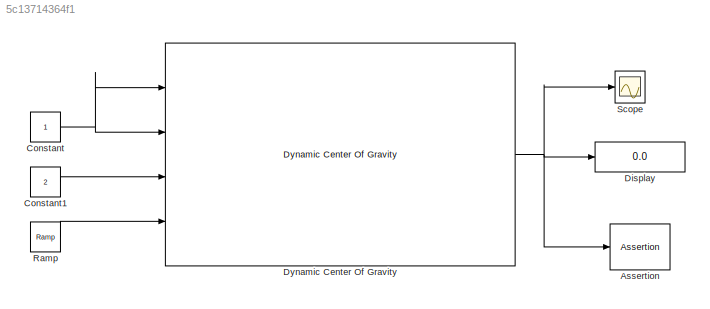
MODEL slx_5c13714364f1
KIND model
BLOCK [Assertion] Assertion
BLOCK [Constant] Constant
BLOCK [Constant] Constant1
  Value = 2
BLOCK [Display] Display
  Decimation = 1
  Ports = [1]
BLOCK [Reference] Dynamic Center Of Gravity  REF=rocket_dynamic_data_library/Dynamic Center Of Gravity  (lib defined in slx_58be5b8ac4f4)
  Ports = [4, 1]
  SourceBlock = rocket_dynamic_data_library/Dynamic Center Of Gravity
  SourceType = SubSystem
BLOCK [Reference] Ramp  REF=simulink/Sources/Ramp
  Ports = [0, 1]
  SourceBlock = simulink/Sources/Ramp
  SourceType = Ramp
  VectorParams1D = on
  X0 = 10
  slope = -1
  start = 0
BLOCK [Scope] Scope
  DataFormat = StructureWithTime
  Floating = off
  NumInputPorts = 1
  Ports = [1]
  SampleTime = 0
  ShowLegends = off
LINE Constant1:1 -> Dynamic Center Of Gravity:3
NET Constant:1 -> Dynamic Center Of Gravity:1, Dynamic Center Of Gravity:2
NET Dynamic Center Of Gravity:1 -> Assertion:1, Display:1, Scope:1
LINE Ramp:1 -> Dynamic Center Of Gravity:4
note: NET lines group one-source signal fan-out (src -> all destinations, sorted); 1:1 wires keep LINE
